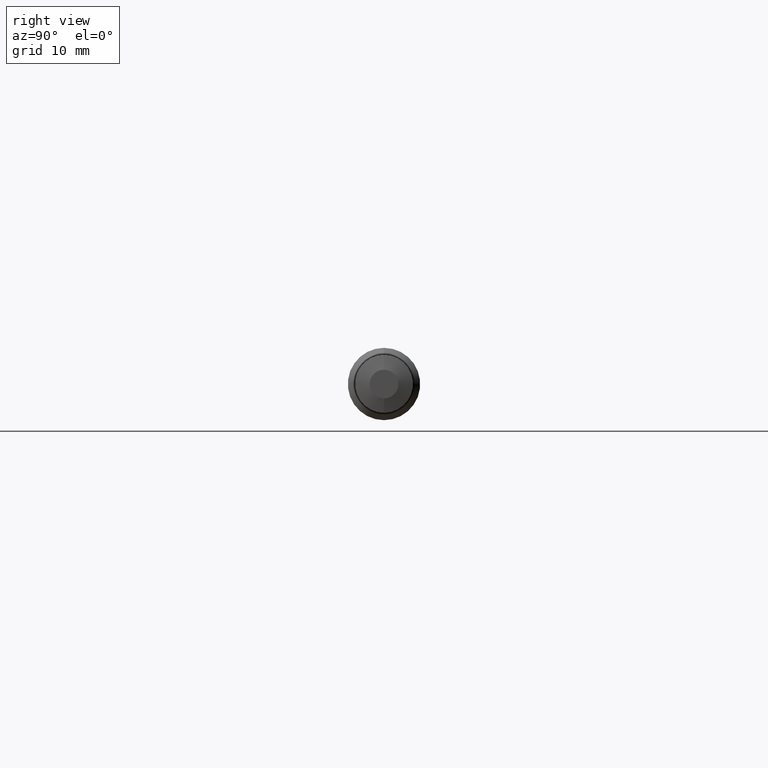
[diagram: clean part render]
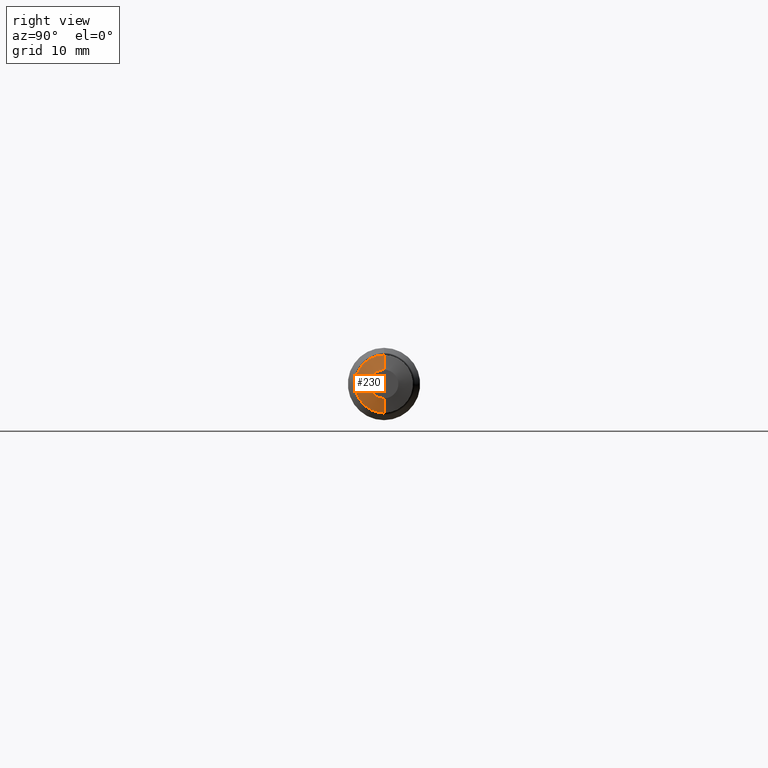
[diagram: same view with one face highlighted and labeled with its STEP entity id]
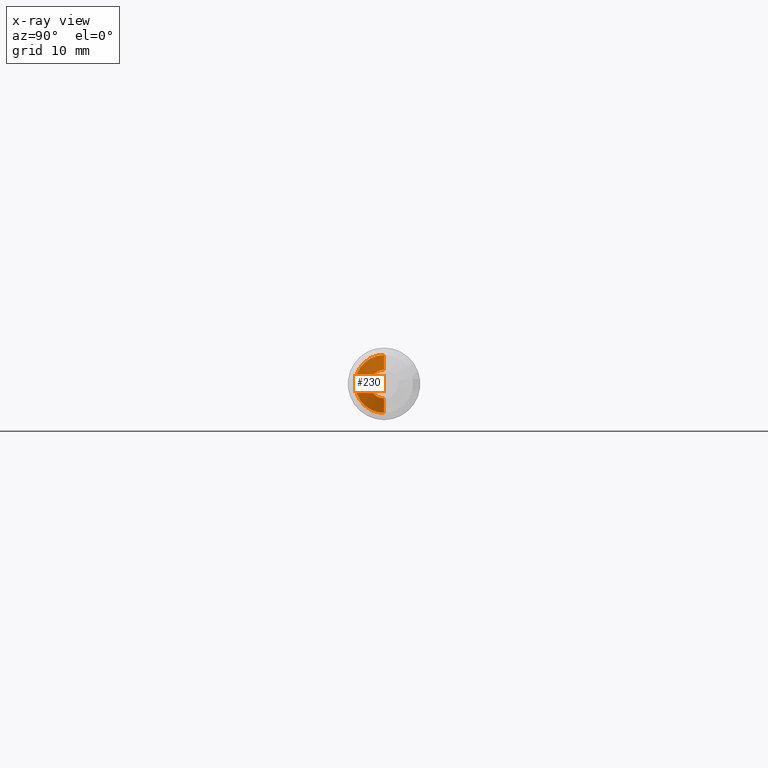
[diagram: x-ray of the same camera — body ghosted, the highlighted face saturated]
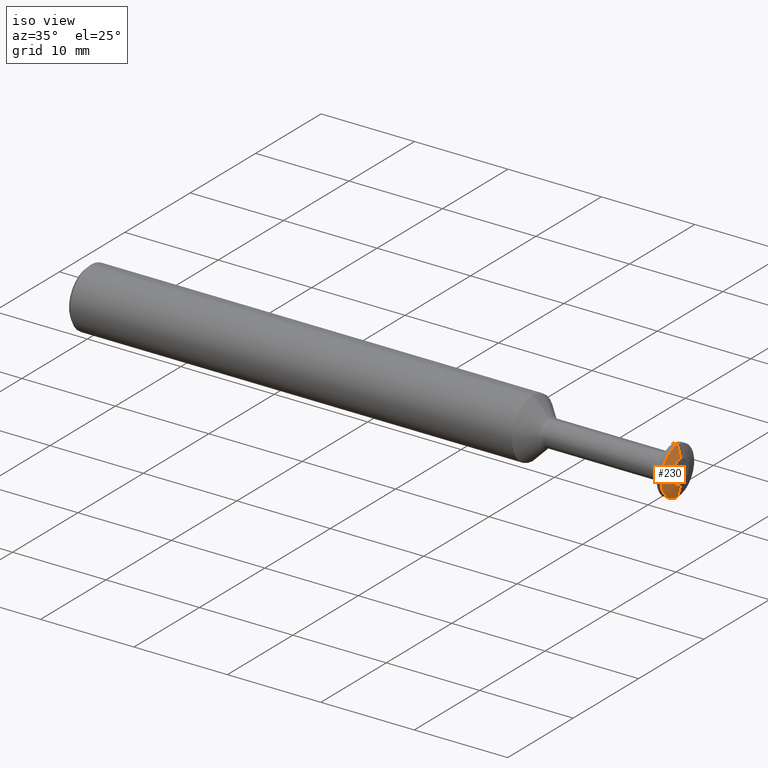
[diagram: same view with one face highlighted and labeled with its STEP entity id]
A machine part, right view. The second image highlights one B-rep face of the part: STEP entity #230.
The next image is the same camera in x-ray: the body ghosted, the highlighted face saturated — about 0% of this face is hidden behind the body in this view.
A second angle (iso view) of the same face is appended — the face is thin or edge-on in the first view.
In plain terms, the highlighted conical surface has half-angle 75.6 deg.
Its self-contained STEP definition (entity closure, byte-faithful):
#3 = CIRCLE ( 'NONE', #298, 0.09999999999999956146 ) ;
#20 = ORIENTED_EDGE ( 'NONE', *, *, #92, .T. ) ;
#21 = EDGE_CURVE ( 'NONE', #215, #225, #318, .T. ) ;
#50 = CARTESIAN_POINT ( 'NONE',  ( 2.500000000000000000, 0.000000000000000000, 0.04949999999999953049 ) ) ;
#72 = VECTOR ( 'NONE', #297, 39.37007874015748143 ) ;
#73 = EDGE_LOOP ( 'NONE', ( #396, #515, #20, #110 ) ) ;
#92 = EDGE_CURVE ( 'NONE', #225, #436, #121, .T. ) ;
#110 = ORIENTED_EDGE ( 'NONE', *, *, #335, .F. ) ;
#121 = LINE ( 'NONE', #50, #184 ) ;
#134 = DIRECTION ( 'NONE',  ( -0.2486898871648597353, 0.000000000000000000, 0.9685831611286298548 ) ) ;
#135 = CARTESIAN_POINT ( 'NONE',  ( 2.500000000000000000, 6.062001655779341041E-18, -0.04949999999999953049 ) ) ;
#162 = CONICAL_SURFACE ( 'NONE', #397, 0.04949999999999953049, 1.319468914507708091 ) ;
#176 = CARTESIAN_POINT ( 'NONE',  ( 2.487033803801429688, 0.000000000000000000, 0.000000000000000000 ) ) ;
#184 = VECTOR ( 'NONE', #134, 39.37007874015748143 ) ;
#192 = DIRECTION ( 'NONE',  ( -1.000000000000000000, -0.000000000000000000, -0.000000000000000000 ) ) ;
#214 = DIRECTION ( 'NONE',  ( 0.000000000000000000, 0.000000000000000000, 1.000000000000000000 ) ) ;
#215 = VERTEX_POINT ( 'NONE', #490 ) ;
#220 = DIRECTION ( 'NONE',  ( -1.000000000000000000, -0.000000000000000000, -0.000000000000000000 ) ) ;
#225 = VERTEX_POINT ( 'NONE', #273 ) ;
#230 = ADVANCED_FACE ( 'NONE', ( #506 ), #162, .T. ) ;
#263 = VERTEX_POINT ( 'NONE', #382 ) ;
#273 = CARTESIAN_POINT ( 'NONE',  ( 2.500000000000000000, 0.000000000000000000, 0.04949999999999953049 ) ) ;
#297 = DIRECTION ( 'NONE',  ( -0.2486898871648597353, 1.186172267984201680E-16, -0.9685831611286298548 ) ) ;
#298 = AXIS2_PLACEMENT_3D ( 'NONE', #176, #192, #415 ) ;
#310 = DIRECTION ( 'NONE',  ( -1.000000000000000000, -0.000000000000000000, -0.000000000000000000 ) ) ;
#318 = CIRCLE ( 'NONE', #384, 0.04949999999999953049 ) ;
#335 = EDGE_CURVE ( 'NONE', #263, #436, #3, .T. ) ;
#342 = EDGE_CURVE ( 'NONE', #215, #263, #500, .T. ) ;
#348 = CARTESIAN_POINT ( 'NONE',  ( 2.500000000000000000, 0.000000000000000000, 0.000000000000000000 ) ) ;
#382 = CARTESIAN_POINT ( 'NONE',  ( 2.487033803801429688, 1.224646799147348030E-17, -0.09999999999999957534 ) ) ;
#384 = AXIS2_PLACEMENT_3D ( 'NONE', #348, #310, #520 ) ;
#391 = CARTESIAN_POINT ( 'NONE',  ( 2.500000000000000000, 0.000000000000000000, 0.000000000000000000 ) ) ;
#396 = ORIENTED_EDGE ( 'NONE', *, *, #342, .F. ) ;
#397 = AXIS2_PLACEMENT_3D ( 'NONE', #391, #220, #214 ) ;
#415 = DIRECTION ( 'NONE',  ( 0.000000000000000000, 0.000000000000000000, 1.000000000000000000 ) ) ;
#436 = VERTEX_POINT ( 'NONE', #525 ) ;
#490 = CARTESIAN_POINT ( 'NONE',  ( 2.500000000000000000, 9.154234823626407976E-18, -0.04949999999999953049 ) ) ;
#500 = LINE ( 'NONE', #135, #72 ) ;
#506 = FACE_OUTER_BOUND ( 'NONE', #73, .T. ) ;
#515 = ORIENTED_EDGE ( 'NONE', *, *, #21, .T. ) ;
#520 = DIRECTION ( 'NONE',  ( 0.000000000000000000, 0.000000000000000000, 1.000000000000000000 ) ) ;
#525 = CARTESIAN_POINT ( 'NONE',  ( 2.487033803801429688, 0.000000000000000000, 0.09999999999999957534 ) ) ;